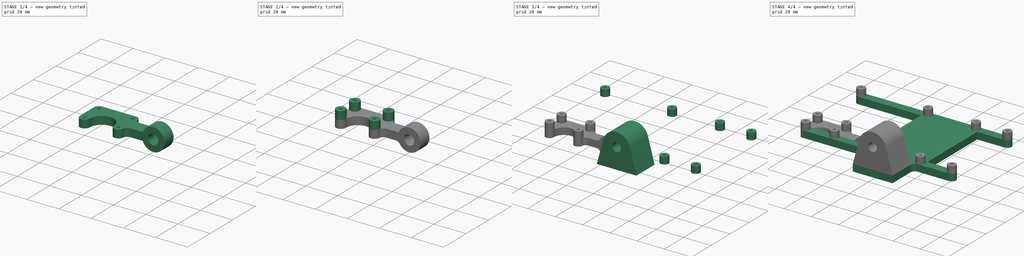
[diagram: build sequence overview — one tinted view per stage of 4, left to right]
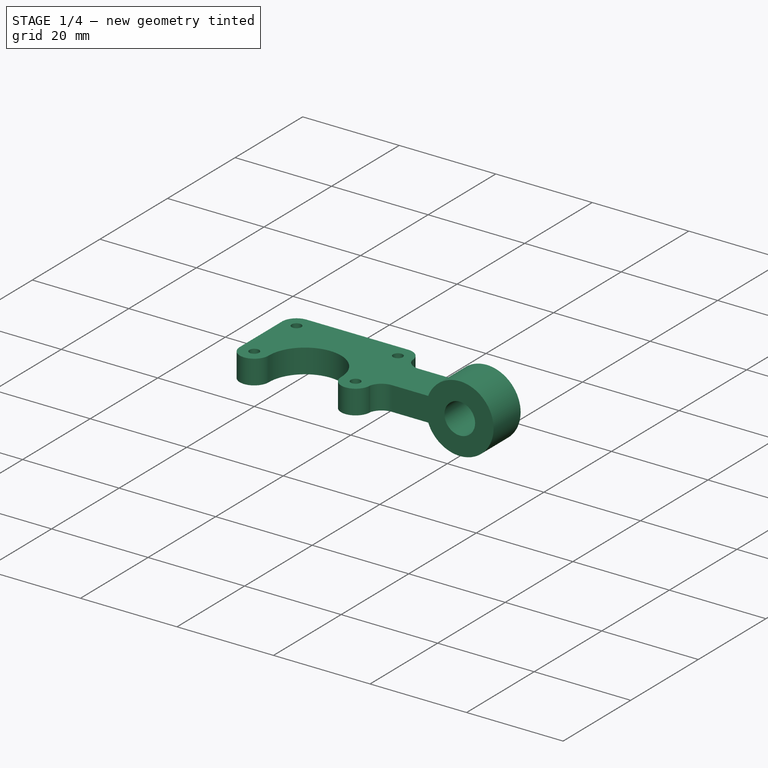
[diagram: stage 1 of 4 — iso view after this stage's code; geometry added in this stage tinted green]
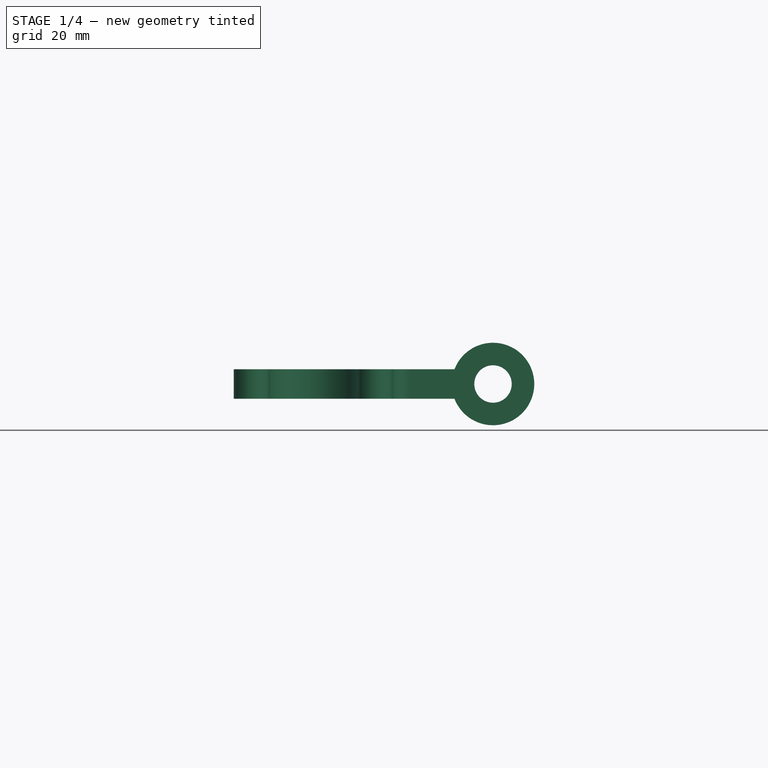
[diagram: stage 1 of 4 — front view after this stage's code; geometry added in this stage tinted green]
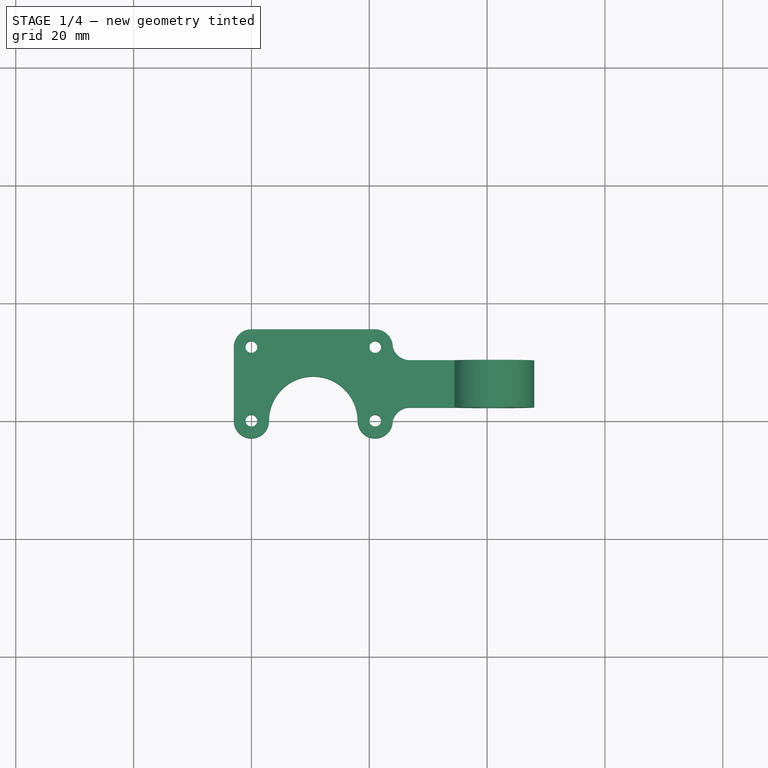
[diagram: stage 1 of 4 — top view after this stage's code; geometry added in this stage tinted green]
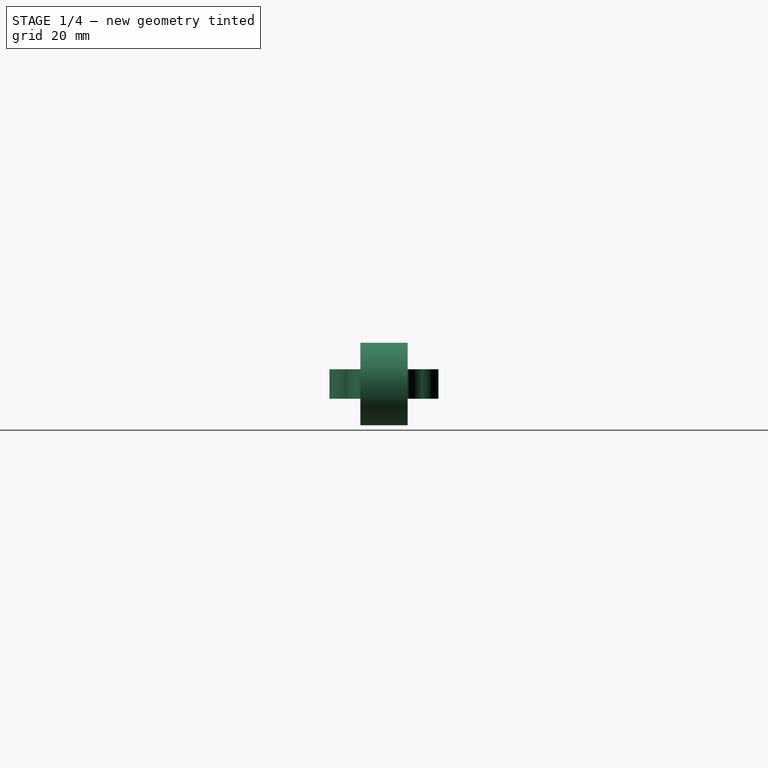
[diagram: stage 1 of 4 — right view after this stage's code; geometry added in this stage tinted green]
FCSTD DOCUMENT  (FreeCAD 0.18R16146 (Git))
Label: v2
License: All rights reserved
LicenseURL: http://en.wikipedia.org/wiki/All_rights_reserved
objects: Sketcher::SketchObject×6, Part::Extrusion×6, PartDesign::Plane×2, PartDesign::Body×2, Part::MultiFuse×2, Part::Fillet×2, PartDesign::Point×1
note: 21 computed .brp shape members not serialized (recipe doc carries the construction recipe); baked Part::Feature solids carry a one-line shape summary decoded from their .brp

FEATURE [Part::Extrusion] Extrude004
  Base = -> Sketch004
  Dir = (0,0,-1)
  DirMode = 0
  FaceMakerClass = Part::FaceMakerBullseye
  LengthFwd = 5
  LengthRev = 0
  Solid = true
  Symmetric = false
FEATURE [PartDesign::Plane] DatumPlane001
  Length = 57.3875
  MapMode = 1
  Placement = pos=(41,6.25,0) rot=(1,0,0;1.5708rad)
  ResizeMode = 0
  Width = 26.3875
FEATURE [Sketcher::SketchObject] Sketch005
  ExternalGeometry = -> [Sketch004]
  MapMode = 5
  Placement = pos=(41,6.25,0) rot=(1,0,0;1.5708rad)
  Support = -> [DatumPlane001]
  sketch-geometry (3):
    g0: LineSegment [constr] StartX=0 StartY=0 StartZ=0 EndX=0 EndY=-5 EndZ=0
    g1: Circle CenterX=0 CenterY=-2.5 CenterZ=0 NormalX=0 NormalY=0 NormalZ=1 AngleXU=0 Radius=3.175
    g2: Circle CenterX=0 CenterY=-2.5 CenterZ=0 NormalX=0 NormalY=0 NormalZ=1 AngleXU=0 Radius=7
  constraints (8):
    c: Coincident(g0,g-1)
    c: PointOnObject(g0,g-2)
    c: DistanceY(g0,g0) = 5
    c: PointOnObject(g1,g0)
    c: DistanceY(g1,g-1) = 2.5
    c: Radius(g1) = 3.175
    c: Coincident(g2,g1)
    c: Radius(g2) = 7
FEATURE [PartDesign::Body] Body001  label="camera_profile"
  Group = -> [Sketch003,Sketch004,DatumPlane001,Sketch005]
  Origin = -> Origin001
FEATURE [Part::Extrusion] Extrude007
  Base = -> Sketch005
  Dir = (0,1,0)
  DirMode = 0
  FaceMakerClass = Part::FaceMakerBullseye
  LengthFwd = 8
  LengthRev = 0
  Solid = true
  Symmetric = true
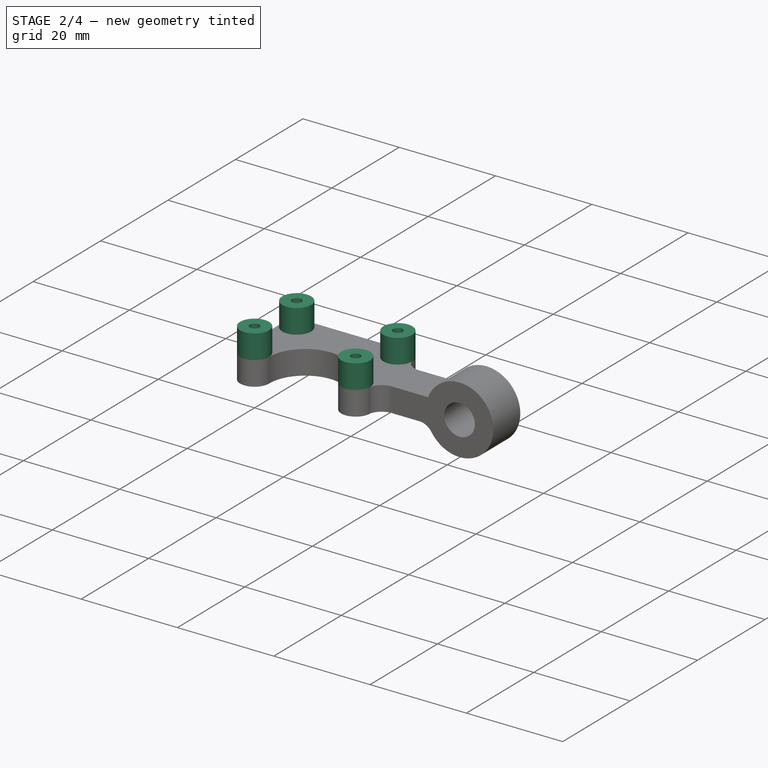
[diagram: stage 2 of 4 — iso view after this stage's code; geometry added in this stage tinted green]
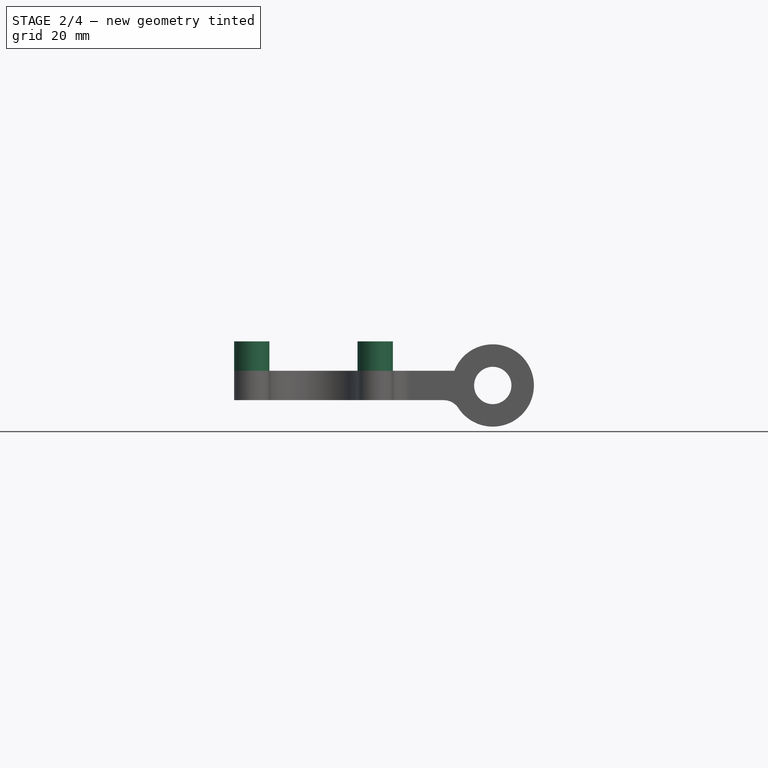
[diagram: stage 2 of 4 — front view after this stage's code; geometry added in this stage tinted green]
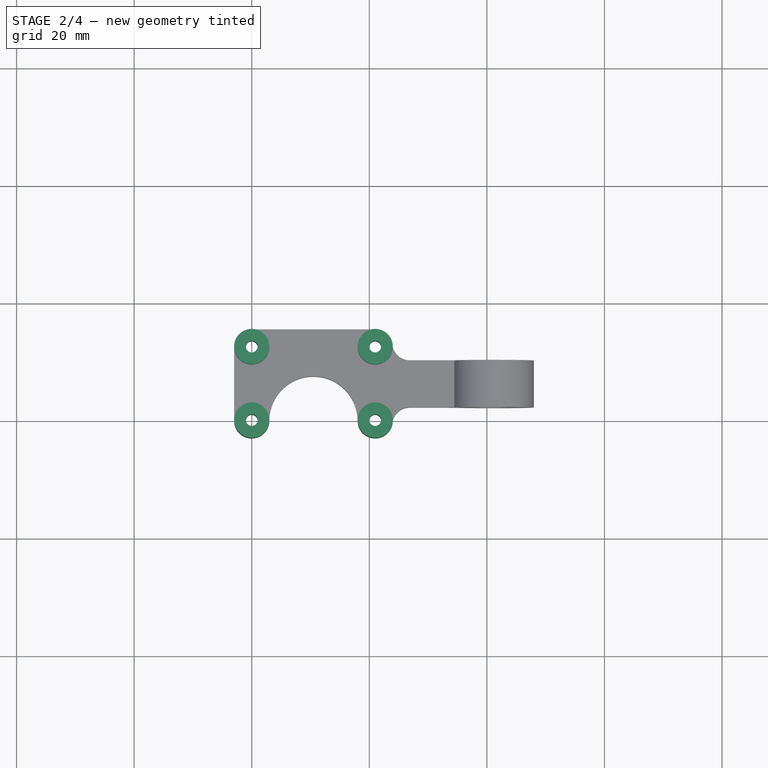
[diagram: stage 2 of 4 — top view after this stage's code; geometry added in this stage tinted green]
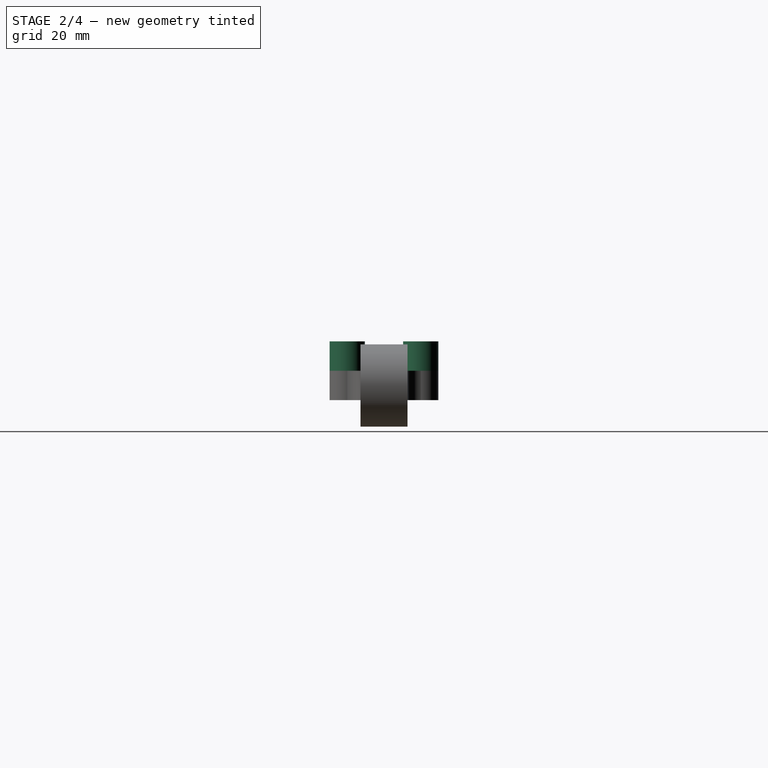
[diagram: stage 2 of 4 — right view after this stage's code; geometry added in this stage tinted green]
FEATURE [Sketcher::SketchObject] Sketch003  label="camera-stilts"
  MapMode = 5
  Support = -> [XY_Plane002]
  sketch-geometry (11):
    g0: LineSegment [constr] StartX=0 StartY=0 StartZ=0 EndX=0 EndY=12.5 EndZ=0
    g1: LineSegment [constr] StartX=0 StartY=12.5 StartZ=0 EndX=21 EndY=12.5 EndZ=0
    g2: Circle CenterX=0 CenterY=12.5 CenterZ=0 NormalX=0 NormalY=0 NormalZ=1 AngleXU=0 Radius=1
    g3: Circle CenterX=0 CenterY=12.5 CenterZ=0 NormalX=0 NormalY=0 NormalZ=1 AngleXU=0 Radius=3
    g4: Circle CenterX=21 CenterY=12.5 CenterZ=0 NormalX=0 NormalY=0 NormalZ=1 AngleXU=0 Radius=1
    g5: Circle CenterX=21 CenterY=12.5 CenterZ=0 NormalX=0 NormalY=0 NormalZ=1 AngleXU=0 Radius=3
    g6: Circle CenterX=21 CenterY=0 CenterZ=0 NormalX=0 NormalY=0 NormalZ=1 AngleXU=0 Radius=1
    g7: Circle CenterX=21 CenterY=0 CenterZ=0 NormalX=0 NormalY=0 NormalZ=1 AngleXU=0 Radius=3
    g8: Circle CenterX=0 CenterY=0 CenterZ=0 NormalX=0 NormalY=0 NormalZ=1 AngleXU=0 Radius=1
    g9: Circle CenterX=0 CenterY=0 CenterZ=0 NormalX=0 NormalY=0 NormalZ=1 AngleXU=0 Radius=3
    g10: LineSegment [constr] StartX=0 StartY=0 StartZ=0 EndX=10.5 EndY=0 EndZ=0
  constraints (26):
    c: Coincident(g0,g-1)
    c: Vertical(g0)
    c: Coincident(g1,g0)
    c: Horizontal(g1)
    c: DistanceY(g0,g0) = 12.5
    c: DistanceX(g1,g1) = 21
    c: Coincident(g2,g0)
    c: Coincident(g3,g2)
    c: Radius(g2) = 1
    c: Radius(g3) = 3
    c: PointOnObject(g6,g-1)
    c: Vertical(g1,g6)
    c: Coincident(g4,g1)
    c: Coincident(g5,g4)
    c: Coincident(g7,g6)
    c: Coincident(g8,g-1)
    c: Coincident(g9,g8)
    c: Equal(g2,g8)
    c: Equal(g2,g4)
    c: Equal(g2,g6)
    c: Equal(g3,g5)
    c: Equal(g9,g3)
    c: Equal(g3,g7)
    c: Coincident(g10,g8)
    c: PointOnObject(g10,g-1)
    c: DistanceX(g10,g10) = 10.5
FEATURE [Sketcher::SketchObject] Sketch004  label="camera-base"
  MapMode = 5
  Support = -> [XY_Plane002]
  sketch-geometry (22):
    g0: LineSegment [constr] StartX=0 StartY=0 StartZ=0 EndX=0 EndY=12.5 EndZ=0
    g1: LineSegment [constr] StartX=0 StartY=12.5 StartZ=0 EndX=21 EndY=12.5 EndZ=0
    g2: Circle CenterX=0 CenterY=12.5 CenterZ=0 NormalX=0 NormalY=0 NormalZ=1 AngleXU=0 Radius=1
    g3: Circle CenterX=21 CenterY=12.5 CenterZ=0 NormalX=0 NormalY=0 NormalZ=1 AngleXU=0 Radius=1
    g4: Circle CenterX=21 CenterY=0 CenterZ=0 NormalX=0 NormalY=0 NormalZ=1 AngleXU=0 Radius=1
    g5: Circle CenterX=0 CenterY=0 CenterZ=0 NormalX=0 NormalY=0 NormalZ=1 AngleXU=0 Radius=1
    g6: LineSegment [constr] StartX=0 StartY=0 StartZ=0 EndX=10.5 EndY=0 EndZ=0
    g7: LineSegment StartX=-3 StartY=12.5 StartZ=0 EndX=-3 EndY=0 EndZ=0
    g8: ArcOfCircle CenterX=10.5 CenterY=0 CenterZ=0 NormalX=0 NormalY=0 NormalZ=1 AngleXU=0 Radius=7.5 StartAngle=0 EndAngle=3.14159
    g9: ArcOfCircle CenterX=0 CenterY=12.5 CenterZ=0 NormalX=0 NormalY=0 NormalZ=1 AngleXU=0 Radius=3 StartAngle=1.5708 EndAngle=3.14159
    g10: ArcOfCircle CenterX=0 CenterY=0 CenterZ=0 NormalX=0 NormalY=0 NormalZ=1 AngleXU=0 Radius=3 StartAngle=3.14159 EndAngle=6.28319
    g11: LineSegment [constr] StartX=21 StartY=12.5 StartZ=0 EndX=35 EndY=12.5 EndZ=0
    g12: LineSegment [constr] StartX=0 StartY=6.25 StartZ=0 EndX=35 EndY=6.25 EndZ=0
    g13: ArcOfCircle CenterX=21 CenterY=12.5 CenterZ=0 NormalX=0 NormalY=0 NormalZ=1 AngleXU=0 Radius=3 StartAngle=6e-16 EndAngle=1.5708
    g14: ArcOfCircle CenterX=21 CenterY=0 CenterZ=0 NormalX=0 NormalY=0 NormalZ=1 AngleXU=0 Radius=3 StartAngle=3.14159 EndAngle=6.28319
    g15: LineSegment StartX=35 StartY=10.25 StartZ=0 EndX=26.9047 EndY=10.25 EndZ=0
    g16: LineSegment StartX=35 StartY=2.25 StartZ=0 EndX=26.9047 EndY=2.25 EndZ=0
    g17: LineSegment StartX=35 StartY=10.25 StartZ=0 EndX=35 EndY=6.25 EndZ=0
    g18: LineSegment StartX=35 StartY=2.25 StartZ=0 EndX=35 EndY=6.25 EndZ=0
    g19: LineSegment StartX=2e-16 StartY=15.5 StartZ=0 EndX=21 EndY=15.5 EndZ=0
    g20: ArcOfCircle CenterX=26.9047 CenterY=13.25 CenterZ=0 NormalX=0 NormalY=0 NormalZ=1 AngleXU=0 Radius=3 StartAngle=3.39427 EndAngle=4.71239
    g21: ArcOfCircle CenterX=26.9047 CenterY=-0.75 CenterZ=0 NormalX=0 NormalY=0 NormalZ=1 AngleXU=0 Radius=3 StartAngle=1.5708 EndAngle=2.88891
  constraints (57):
    c: Coincident(g0,g-1)
    c: Vertical(g0)
    c: Coincident(g1,g0)
    c: Horizontal(g1)
    c: DistanceY(g0,g0) = 12.5
    c: DistanceX(g1,g1) = 21
    c: Coincident(g2,g0)
    c: Radius(g2) = 1
    c: PointOnObject(g4,g-1)
    c: Vertical(g1,g4)
    c: Coincident(g3,g1)
    c: Coincident(g5,g-1)
    c: Equal(g2,g5)
    c: Equal(g2,g3)
    c: Equal(g2,g4)
    c: Coincident(g6,g5)
    c: PointOnObject(g6,g-1)
    c: Vertical(g7)
    c: Coincident(g8,g6)
    c: Coincident(g9,g2)
    c: Coincident(g10,g5)
    c: Tangent(g9,g7) = -1.5708
    c: Tangent(g10,g8) = 1.5708
    c: Tangent(g10,g7) = -1.5708
    c: Coincident(g11,g3)
    c: Horizontal(g11)
    c: DistanceX(g11,g11) = 14
    c: PointOnObject(g12,g0)
    c: Horizontal(g12)
    c: DistanceY(g5,g12) = 6.25
    c: DistanceY(g12,g15) = 4
    c: DistanceY(g16,g12) = 4
    c: Vertical(g11,g12)
    c: Coincident(g13,g3)
    c: Coincident(g14,g4)
    c: PointOnObject(g14,g-1)
    c: Horizontal(g15)
    c: Horizontal(g16)
    c: Coincident(g17,g15)
    c: Coincident(g17,g12)
    c: Vertical(g17)
    c: Coincident(g18,g16)
    c: Vertical(g18)
    c: Horizontal(g19)
    c: Tangent(g15,g20) = 1.5708
    c: Tangent(g19,g9) = 1.5708
    c: Tangent(g19,g13) = 1.5708
    c: Radius(g9) = 3
    c: Tangent(g14,g8) = 1.5708
    c: Coincident(g20,g13)
    c: PointOnObject(g13,g11)
    c: Radius(g20) = 3
    c: Coincident(g12,g18)
    c: Radius(g14) = 3
    c: Coincident(g21,g14)
    c: Radius(g21) = 3
    c: Tangent(g21,g16) = -1.5708
FEATURE [Part::Extrusion] Extrude003
  Base = -> Sketch003
  Dir = (0,0,1)
  DirMode = 0
  FaceMakerClass = Part::FaceMakerBullseye
  LengthFwd = 5
  LengthRev = 0
  Solid = true
  Symmetric = false
FEATURE [Part::MultiFuse] Fusion001  label="camera-mount-solid"
  Shapes = -> [Extrude003,Extrude004,Extrude007]
FEATURE [Part::Fillet] Fillet
  Base = -> Fusion001
  Edges = 1 edges r=3: [Edge18]
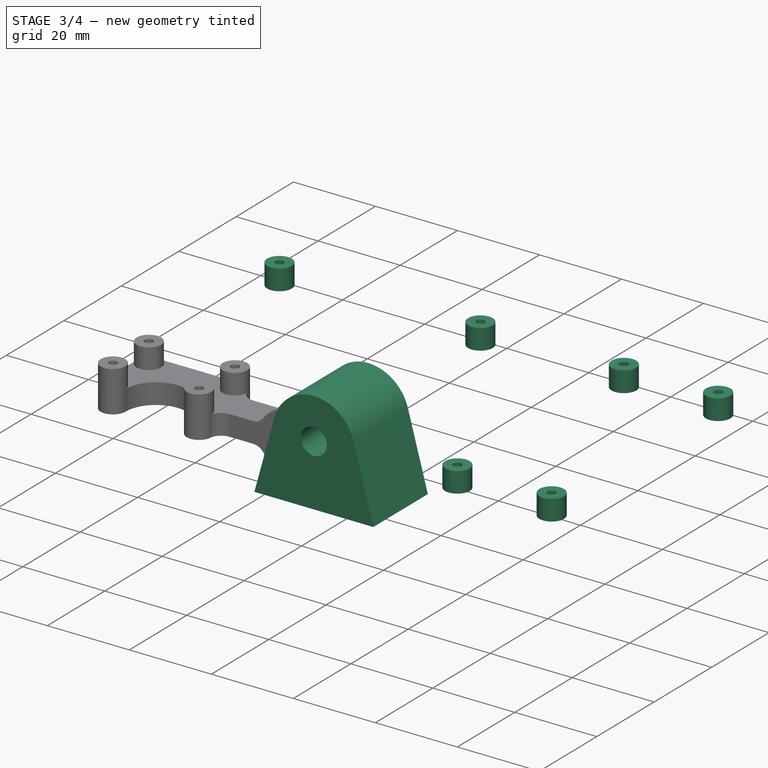
[diagram: stage 3 of 4 — iso view after this stage's code; geometry added in this stage tinted green]
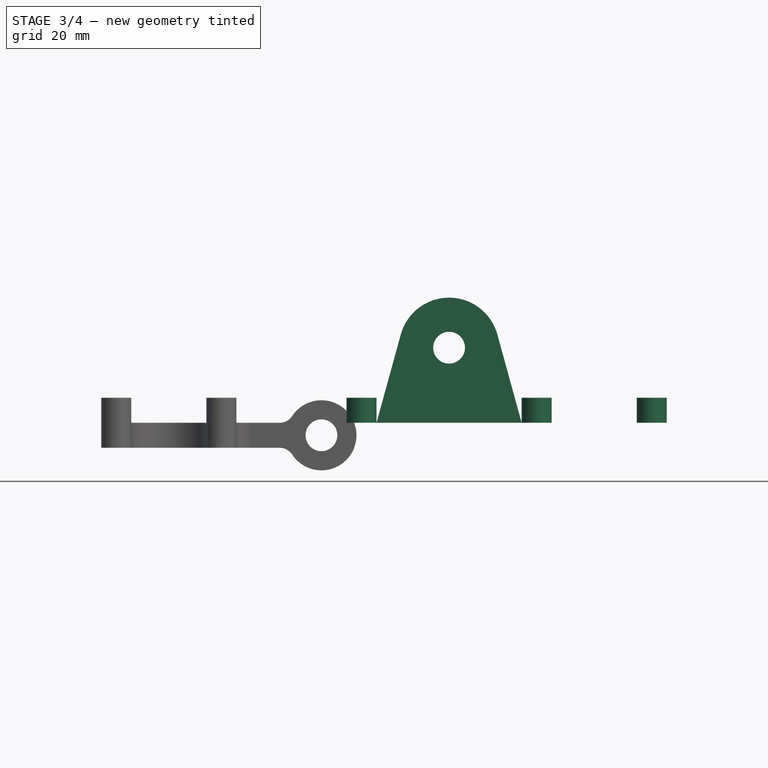
[diagram: stage 3 of 4 — front view after this stage's code; geometry added in this stage tinted green]
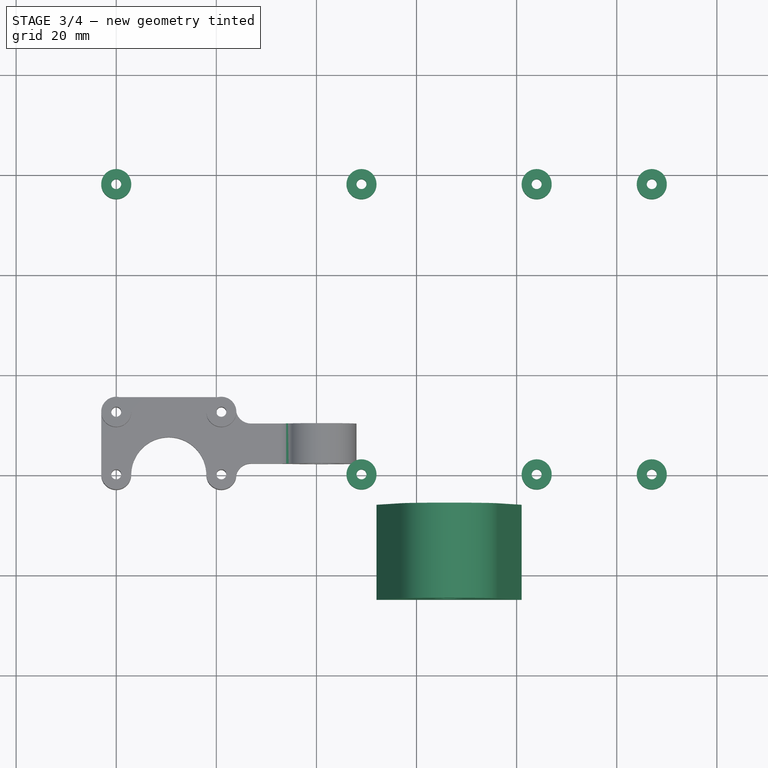
[diagram: stage 3 of 4 — top view after this stage's code; geometry added in this stage tinted green]
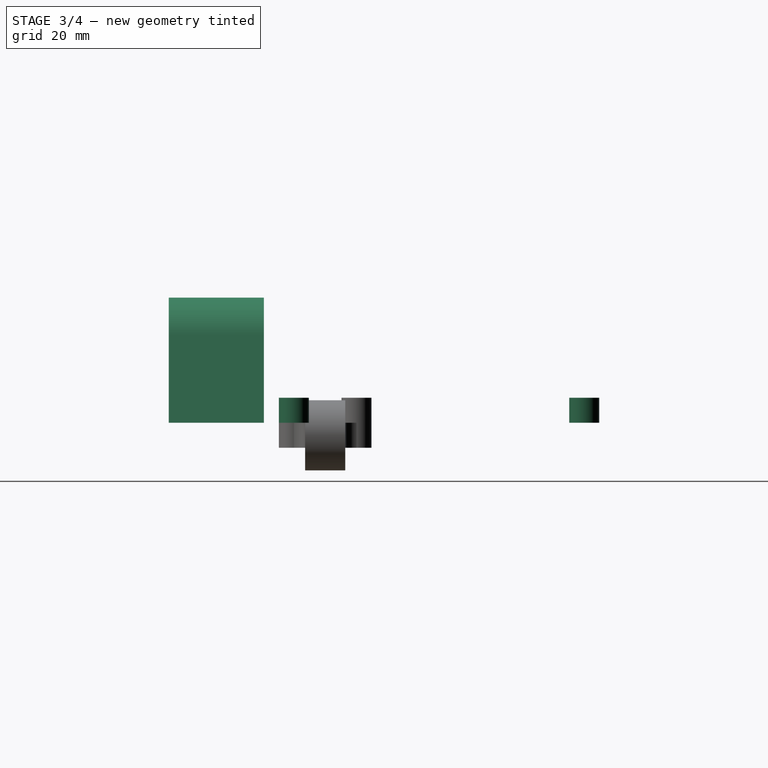
[diagram: stage 3 of 4 — right view after this stage's code; geometry added in this stage tinted green]
FEATURE [Part::Extrusion] Extrude  label="stilts-extruded"
  Base = -> Sketch
  Dir = (0,0,1)
  DirMode = 0
  FaceMakerClass = Part::FaceMakerBullseye
  LengthFwd = 5
  LengthRev = 0
  Solid = true
  Symmetric = false
FEATURE [Part::Extrusion] Extrude002  label="camera-rig-mount001"
  Base = -> Sketch002
  Dir = (0,1,0)
  DirMode = 0
  FaceMakerClass = Part::FaceMakerBullseye
  LengthFwd = 19
  LengthRev = 0
  Solid = true
  Symmetric = false
FEATURE [Part::Fillet] Fillet001  label="CAMERA-MOUNT"
  Base = -> Fillet
  Edges = 1 edges r=3: [Edge60]
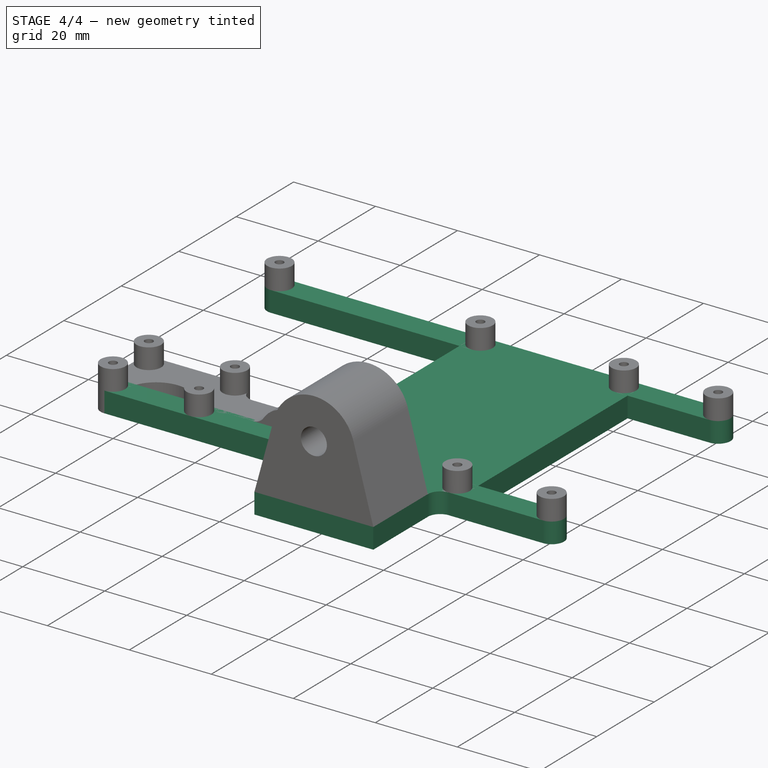
[diagram: stage 4 of 4 — iso view after this stage's code; geometry added in this stage tinted green]
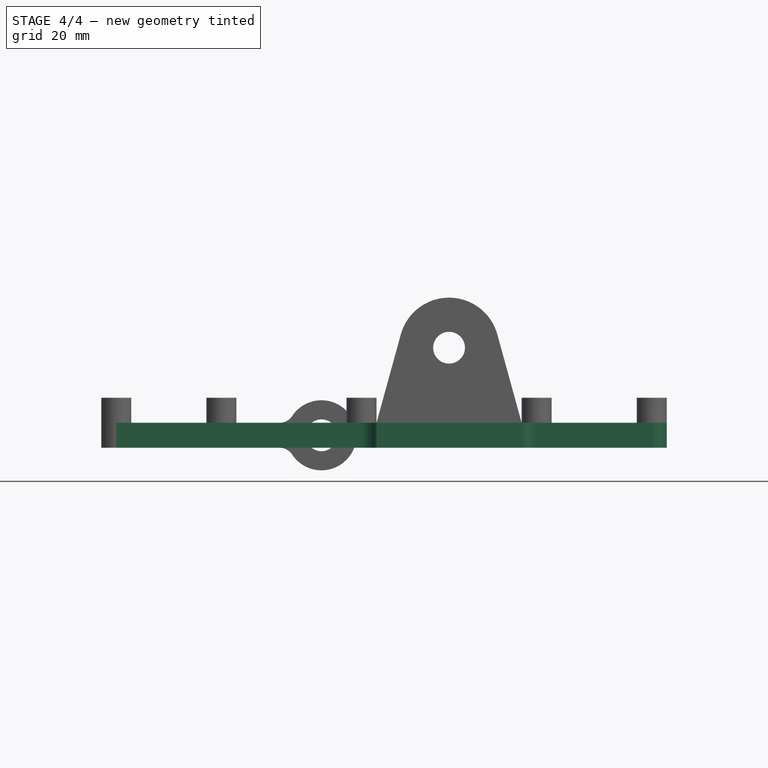
[diagram: stage 4 of 4 — front view after this stage's code; geometry added in this stage tinted green]
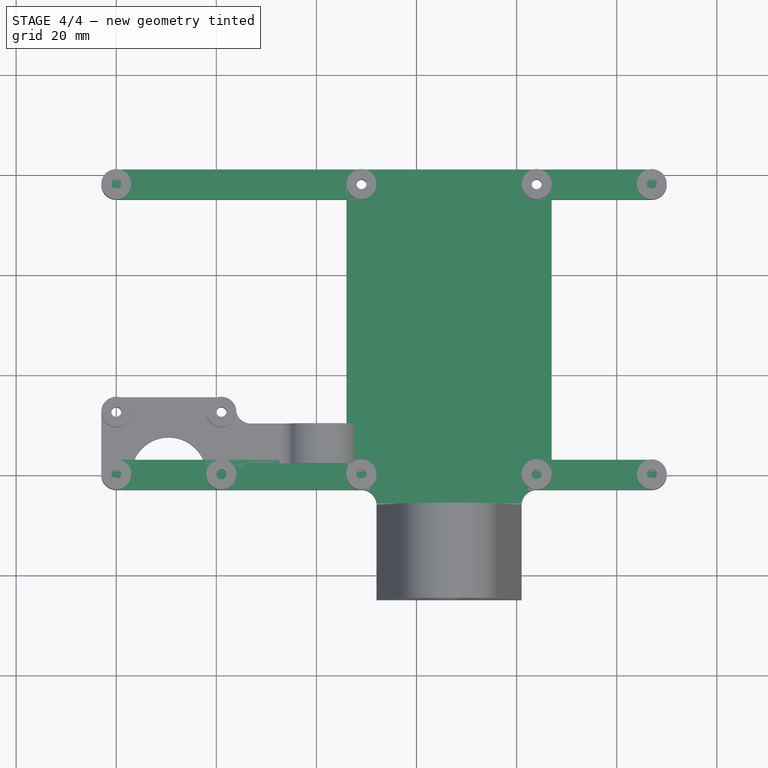
[diagram: stage 4 of 4 — top view after this stage's code; geometry added in this stage tinted green]
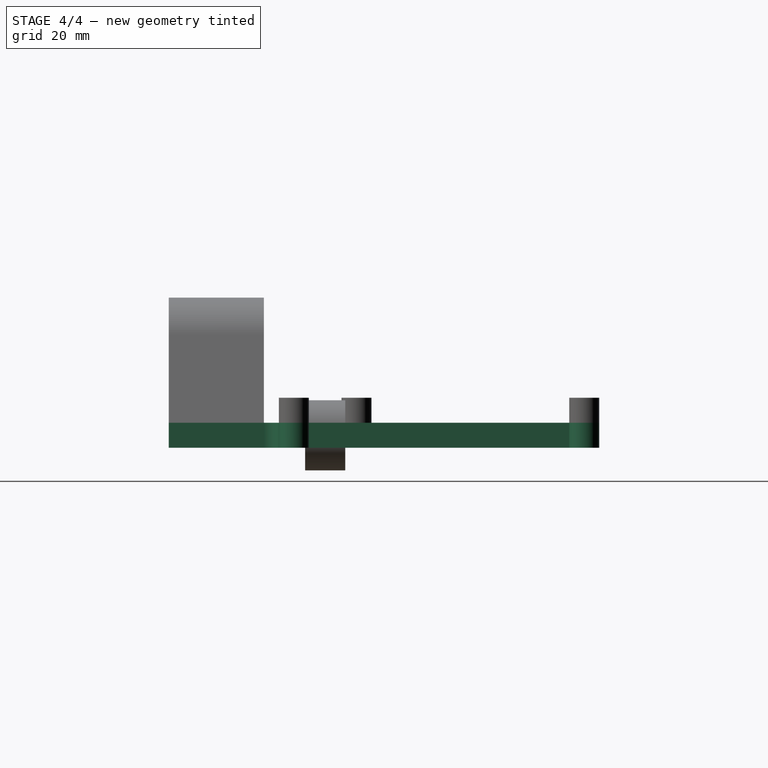
[diagram: stage 4 of 4 — right view after this stage's code; geometry added in this stage tinted green]
FEATURE [Sketcher::SketchObject] Sketch  label="stilts"
  MapMode = 5
  Support = -> [XY_Plane]
  sketch-geometry (23):
    g0: LineSegment [constr] StartX=49 StartY=0 StartZ=0 EndX=49 EndY=58 EndZ=0
    g1: LineSegment [constr] StartX=49 StartY=0 StartZ=0 EndX=84 EndY=0 EndZ=0
    g2: LineSegment [constr] StartX=84 StartY=0 StartZ=0 EndX=84 EndY=58 EndZ=0
    g3: LineSegment [constr] StartX=84 StartY=0 StartZ=0 EndX=107 EndY=0 EndZ=0
    g4: LineSegment [constr] StartX=107 StartY=0 StartZ=0 EndX=107 EndY=58 EndZ=0
    g5: LineSegment [constr] StartX=0 StartY=0 StartZ=0 EndX=0 EndY=58 EndZ=0
    g6: Circle CenterX=0 CenterY=58 CenterZ=0 NormalX=0 NormalY=0 NormalZ=1 AngleXU=0 Radius=1
    g7: Circle CenterX=0 CenterY=58 CenterZ=0 NormalX=0 NormalY=0 NormalZ=1 AngleXU=0 Radius=3
    g8: LineSegment [constr] StartX=0 StartY=0 StartZ=0 EndX=49 EndY=0 EndZ=0
    g9: Circle CenterX=49 CenterY=58 CenterZ=0 NormalX=0 NormalY=0 NormalZ=1 AngleXU=0 Radius=1
    g10: Circle CenterX=49 CenterY=58 CenterZ=0 NormalX=0 NormalY=0 NormalZ=1 AngleXU=0 Radius=3
    g11: Circle CenterX=84 CenterY=58 CenterZ=0 NormalX=0 NormalY=0 NormalZ=1 AngleXU=0 Radius=3
    g12: Circle CenterX=84 CenterY=58 CenterZ=0 NormalX=0 NormalY=0 NormalZ=1 AngleXU=0 Radius=1
    g13: Circle CenterX=107 CenterY=58 CenterZ=0 NormalX=0 NormalY=0 NormalZ=1 AngleXU=0 Radius=3
    g14: Circle CenterX=107 CenterY=58 CenterZ=0 NormalX=0 NormalY=0 NormalZ=1 AngleXU=0 Radius=1
    g15: Circle CenterX=0 CenterY=0 CenterZ=0 NormalX=0 NormalY=0 NormalZ=1 AngleXU=0 Radius=1
    g16: Circle CenterX=0 CenterY=0 CenterZ=0 NormalX=0 NormalY=0 NormalZ=1 AngleXU=0 Radius=3
    g17: Circle CenterX=49 CenterY=0 CenterZ=0 NormalX=0 NormalY=0 NormalZ=1 AngleXU=0 Radius=1
    g18: Circle CenterX=49 CenterY=0 CenterZ=0 NormalX=0 NormalY=0 NormalZ=1 AngleXU=0 Radius=3
    g19: Circle CenterX=84 CenterY=0 CenterZ=0 NormalX=0 NormalY=0 NormalZ=1 AngleXU=0 Radius=3
    g20: Circle CenterX=84 CenterY=0 CenterZ=0 NormalX=0 NormalY=0 NormalZ=1 AngleXU=0 Radius=1
    g21: Circle CenterX=107 CenterY=0 CenterZ=0 NormalX=0 NormalY=0 NormalZ=1 AngleXU=0 Radius=3
    g22: Circle CenterX=107 CenterY=0 CenterZ=0 NormalX=0 NormalY=0 NormalZ=1 AngleXU=0 Radius=1
  constraints (53):
    c: Vertical(g0)
    c: DistanceX(g-1,g0) = 49
    c: Horizontal(g1)
    c: DistanceX(g1,g1) = 35
    c: Vertical(g2)
    c: PointOnObject(g3,g-1)
    c: DistanceX(g3,g3) = 23
    c: Vertical(g4)
    c: Coincident(g5,g-1)
    c: PointOnObject(g5,g-2)
    c: DistanceY(g5,g5) = 58
    c: Coincident(g6,g5)
    c: Coincident(g7,g6)
    c: Radius(g6) = 1
    c: Radius(g7) = 3
    c: Coincident(g8,g-1)
    c: Coincident(g8,g0)
    c: Horizontal(g8)
    c: Coincident(g0,g1)
    c: Equal(g5,g0)
    c: Equal(g2,g5)
    c: Coincident(g1,g2)
    c: Coincident(g1,g3)
    c: Equal(g4,g5)
    c: Coincident(g3,g4)
    c: Coincident(g9,g0)
    c: Coincident(g10,g9)
    c: Coincident(g11,g2)
    c: Coincident(g13,g4)
    c: Coincident(g14,g13)
    c: Equal(g9,g6)
    c: Equal(g7,g10)
    c: Equal(g12,g6)
    c: Equal(g6,g14)
    c: Equal(g11,g7)
    c: Equal(g13,g7)
    c: Coincident(g2,g12)
    c: Coincident(g15,g-1)
    c: Coincident(g16,g15)
    c: Coincident(g17,g0)
    c: Coincident(g18,g17)
    c: Coincident(g19,g1)
    c: Coincident(g20,g19)
    c: Coincident(g21,g3)
    c: Coincident(g22,g21)
    c: Equal(g16,g7)
    c: Equal(g18,g7)
    c: Equal(g19,g7)
    c: Equal(g21,g7)
    c: Equal(g15,g6)
    c: Equal(g17,g6)
    c: Equal(g20,g6)
    c: Equal(g22,g6)
FEATURE [Sketcher::SketchObject] Sketch001  label="base"
  MapMode = 5
  Support = -> [XY_Plane]
  sketch-geometry (34):
    g0: LineSegment [constr] StartX=49 StartY=0 StartZ=0 EndX=49 EndY=58 EndZ=0
    g1: LineSegment [constr] StartX=49 StartY=0 StartZ=0 EndX=84 EndY=0 EndZ=0
    g2: LineSegment [constr] StartX=84 StartY=0 StartZ=0 EndX=84 EndY=58 EndZ=0
    g3: LineSegment [constr] StartX=84 StartY=0 StartZ=0 EndX=107 EndY=0 EndZ=0
    g4: LineSegment [constr] StartX=107 StartY=0 StartZ=0 EndX=107 EndY=58 EndZ=0
    g5: LineSegment [constr] StartX=0 StartY=0 StartZ=0 EndX=0 EndY=58 EndZ=0
    g6: LineSegment [constr] StartX=0 StartY=0 StartZ=0 EndX=49 EndY=0 EndZ=0
    g7: Circle [constr] CenterX=49 CenterY=58 CenterZ=0 NormalX=0 NormalY=0 NormalZ=1 AngleXU=0 Radius=3
    g8: Circle [constr] CenterX=84 CenterY=58 CenterZ=0 NormalX=0 NormalY=0 NormalZ=1 AngleXU=0 Radius=3
    g9: Circle [constr] CenterX=49 CenterY=0 CenterZ=0 NormalX=0 NormalY=0 NormalZ=1 AngleXU=0 Radius=3
    g10: Circle [constr] CenterX=84 CenterY=0 CenterZ=0 NormalX=0 NormalY=0 NormalZ=1 AngleXU=0 Radius=3
    g11: LineSegment StartX=-9.55538e-08 StartY=61 StartZ=0 EndX=107 EndY=61 EndZ=0
    g12: LineSegment StartX=-6e-16 StartY=-3 StartZ=0 EndX=49 EndY=-3 EndZ=0
    g13: LineSegment StartX=87 StartY=55 StartZ=0 EndX=87 EndY=3 EndZ=0
    g14: LineSegment StartX=46 StartY=55 StartZ=0 EndX=46 EndY=3 EndZ=0
    g15: LineSegment StartX=-6e-16 StartY=55 StartZ=0 EndX=46 EndY=55 EndZ=0
    g16: LineSegment StartX=2e-16 StartY=3 StartZ=0 EndX=46 EndY=3 EndZ=0
    g17: LineSegment [constr] StartX=46 StartY=55 StartZ=0 EndX=49 EndY=55 EndZ=0
    g18: LineSegment [constr] StartX=84 StartY=55 StartZ=0 EndX=87 EndY=55 EndZ=0
    g19: LineSegment StartX=107 StartY=3 StartZ=0 EndX=87 EndY=3 EndZ=0
    g20: LineSegment StartX=107 StartY=55 StartZ=0 EndX=87 EndY=55 EndZ=0
    g21: ArcOfCircle CenterX=0 CenterY=58 CenterZ=0 NormalX=0 NormalY=0 NormalZ=1 AngleXU=0 Radius=3 StartAngle=1.5708 EndAngle=4.71239
    g22: ArcOfCircle CenterX=0 CenterY=0 CenterZ=0 NormalX=0 NormalY=0 NormalZ=1 AngleXU=0 Radius=3 StartAngle=1.5708 EndAngle=4.71239
    g23: ArcOfCircle CenterX=107 CenterY=0 CenterZ=0 NormalX=0 NormalY=0 NormalZ=1 AngleXU=0 Radius=3 StartAngle=4.71239 EndAngle=7.85398
    g24: ArcOfCircle CenterX=107 CenterY=58 CenterZ=0 NormalX=0 NormalY=0 NormalZ=1 AngleXU=0 Radius=3 StartAngle=4.71239 EndAngle=7.85398
    g25: LineSegment StartX=52 StartY=-6 StartZ=0 EndX=52 EndY=-25 EndZ=0
    g26: LineSegment StartX=81 StartY=-6 StartZ=0 EndX=81 EndY=-25 EndZ=0
    g27: LineSegment [constr] StartX=49 StartY=0 StartZ=0 EndX=49 EndY=-25 EndZ=0
    g28: ArcOfCircle CenterX=49 CenterY=-6 CenterZ=0 NormalX=0 NormalY=0 NormalZ=1 AngleXU=0 Radius=3 StartAngle=0 EndAngle=1.5708
    g29: LineSegment StartX=107 StartY=-3 StartZ=0 EndX=84 EndY=-3 EndZ=0
    g30: ArcOfCircle CenterX=84 CenterY=-6 CenterZ=0 NormalX=0 NormalY=0 NormalZ=1 AngleXU=0 Radius=3 StartAngle=1.5708 EndAngle=3.14159
    g31: LineSegment StartX=52 StartY=-25 StartZ=0 EndX=81 EndY=-25 EndZ=0
    g32: Circle CenterX=49 CenterY=58 CenterZ=0 NormalX=0 NormalY=0 NormalZ=1 AngleXU=0 Radius=1
    g33: Circle CenterX=84 CenterY=58 CenterZ=0 NormalX=0 NormalY=0 NormalZ=1 AngleXU=0 Radius=1
  constraints (89):
    c: Vertical(g0)
    c: DistanceX(g-1,g0) = 49
    c: Horizontal(g1)
    c: DistanceX(g1,g1) = 35
    c: Vertical(g2)
    c: PointOnObject(g3,g-1)
    c: DistanceX(g3,g3) = 23
    c: Vertical(g4)
    c: Coincident(g5,g-1)
    c: PointOnObject(g5,g-2)
    c: DistanceY(g5,g5) = 58
    c: Coincident(g6,g-1)
    c: Horizontal(g6)
    c: Equal(g5,g0)
    c: Equal(g2,g5)
    c: Coincident(g1,g2)
    c: Coincident(g1,g3)
    c: Equal(g4,g5)
    c: Coincident(g3,g4)
    c: Coincident(g8,g2)
    c: Coincident(g10,g1)
    c: Horizontal(g11)
    c: Horizontal(g12)
    c: Vertical(g13)
    c: Coincident(g0,g1)
    c: Coincident(g0,g6)
    c: Coincident(g0,g9)
    c: Coincident(g0,g7)
    c: Horizontal(g15)
    c: Vertical(g14)
    c: Coincident(g14,g15)
    c: Horizontal(g16)
    c: PointOnObject(g16,g5)
    c: Coincident(g14,g16)
    c: Coincident(g17,g14)
    c: PointOnObject(g17,g0)
    c: Perpendicular(g0,g17)
    c: DistanceX(g17,g17) = 3
    c: PointOnObject(g18,g2)
    c: Perpendicular(g2,g18)
    c: DistanceX(g18,g18) = 3
    c: Horizontal(g19)
    c: Coincident(g13,g19)
    c: Coincident(g13,g20)
    c: Coincident(g18,g13)
    c: Coincident(g21,g5)
    c: Coincident(g21,g11)
    c: Coincident(g21,g15)
    c: Coincident(g22,g-1)
    c: Coincident(g22,g16)
    c: Coincident(g23,g3)
    c: Coincident(g24,g4)
    c: Radius(g22) = 3
    c: Equal(g22,g21)
    c: Equal(g22,g23)
    c: Equal(g24,g22)
    c: PointOnObject(g15,g5)
    c: Tangent(g24,g11) = 1.5708
    c: Tangent(g24,g20) = 1.5708
    c: Perpendicular(g20,g13)
    c: Tangent(g19,g23) = -1.5708
    c: Tangent(g12,g22) = -1.5708
    c: Equal(g21,g7)
    c: Equal(g9,g22)
    c: Equal(g10,g22)
    c: Equal(g8,g22)
    c: Vertical(g25)
    c: Vertical(g26)
    c: Coincident(g27,g0)
    c: Vertical(g27)
    c: DistanceY(g27,g27) = 25
    c: Tangent(g12,g28) = 1.5708
    c: Tangent(g25,g28) = 1.5708
    c: Equal(g9,g28)
    c: PointOnObject(g12,g27)
    c: Horizontal(g25,g27)
    c: Coincident(g29,g23)
    c: Tangent(g29,g30) = -1.5708
    c: Tangent(g26,g30) = -1.5708
    c: Equal(g30,g28)
    c: Tangent(g29,g10) = 1.5708
    c: Vertical(g23,g19)
    c: Horizontal(g26,g25)
    c: Coincident(g31,g25)
    c: Coincident(g31,g26)
    c: Coincident(g32,g0)
    c: Radius(g32) = 1
    c: Coincident(g33,g2)
    c: Equal(g32,g33)
FEATURE [PartDesign::Point] DatumPoint
  AttacherType = Attacher::AttachEnginePoint
  MapMode = 39
  Placement = pos=(52,-25,0) rot=(0,0,1;0rad)
  Support = -> [Sketch001]
FEATURE [PartDesign::Plane] DatumPlane
  Length = 69.0427
  MapMode = 3
  Placement = pos=(52,-25,0) rot=(1,0,0;1.5708rad)
  ResizeMode = 0
  Support = -> [DatumPoint]
  Width = 27.0427
FEATURE [Sketcher::SketchObject] Sketch002  label="camera-rig-mount"
  ExternalGeometry = -> [Sketch001]
  MapMode = 5
  Placement = pos=(52,-25,0) rot=(1,0,0;1.5708rad)
  Support = -> [DatumPlane]
  sketch-geometry (8):
    g0: LineSegment StartX=9e-16 StartY=0 StartZ=0 EndX=29 EndY=0 EndZ=0
    g1: Circle CenterX=14.5 CenterY=15 CenterZ=0 NormalX=0 NormalY=0 NormalZ=1 AngleXU=0 Radius=3.175
    g2: LineSegment [constr] StartX=9e-16 StartY=0 StartZ=0 EndX=0 EndY=25 EndZ=0
    g3: LineSegment [constr] StartX=0 StartY=25 StartZ=0 EndX=29 EndY=25 EndZ=0
    g4: LineSegment [constr] StartX=0 StartY=15 StartZ=0 EndX=29 EndY=15 EndZ=0
    g5: LineSegment StartX=4.85847 StartY=17.6535 StartZ=0 EndX=9e-16 EndY=0 EndZ=0
    g6: LineSegment StartX=24.1415 StartY=17.6535 StartZ=0 EndX=29 EndY=0 EndZ=0
    g7: ArcOfCircle CenterX=14.5 CenterY=15 CenterZ=0 NormalX=0 NormalY=0 NormalZ=1 AngleXU=0 Radius=10 StartAngle=0.268565 EndAngle=2.87303
  constraints (21):
    c: Coincident(g0,g-1)
    c: Coincident(g0,g-3)
    c: Coincident(g2,g0)
    c: PointOnObject(g2,g-2)
    c: DistanceY(g2,g2) = 25
    c: Coincident(g3,g2)
    c: Horizontal(g3)
    c: Radius(g1) = 3.175
    c: PointOnObject(g4,g2)
    c: Horizontal(g4)
    c: DistanceY(g0,g4) = 15
    c: Vertical(g4,g0)
    c: DistanceX(g4,g1) = 14.5
    c: PointOnObject(g1,g4)
    c: Vertical(g3,g4)
    c: Coincident(g5,g0)
    c: Coincident(g6,g0)
    c: Coincident(g7,g1)
    c: Radius(g7) = 10
    c: Tangent(g7,g5) = -1.5708
    c: Tangent(g7,g6) = 1.5708
FEATURE [PartDesign::Body] Body  label="BASE"
  Group = -> [Sketch,Sketch001,DatumPoint,DatumPlane,Sketch002]
  Origin = -> Origin
FEATURE [Part::Extrusion] Extrude001  label="base-extrusion"
  Base = -> Sketch001
  Dir = (0,0,-5)
  DirMode = 0
  FaceMakerClass = Part::FaceMakerBullseye
  LengthFwd = 5
  LengthRev = 0
  Solid = true
  Symmetric = false
FEATURE [Part::MultiFuse] Fusion  label="MAIN-BASE"
  Shapes = -> [Extrude001,Extrude,Extrude002]
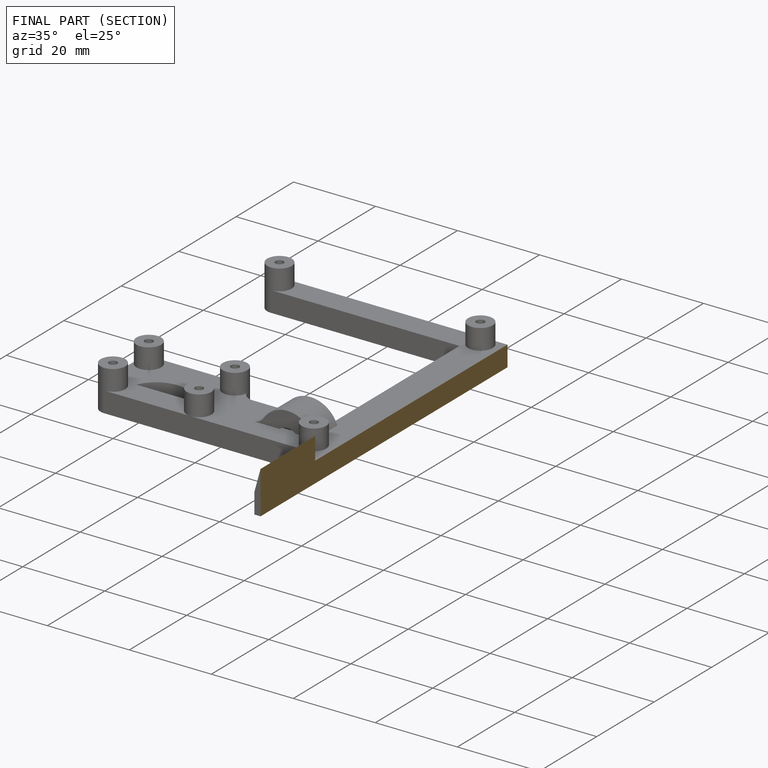
[diagram: finished part — half-section view (interior)]
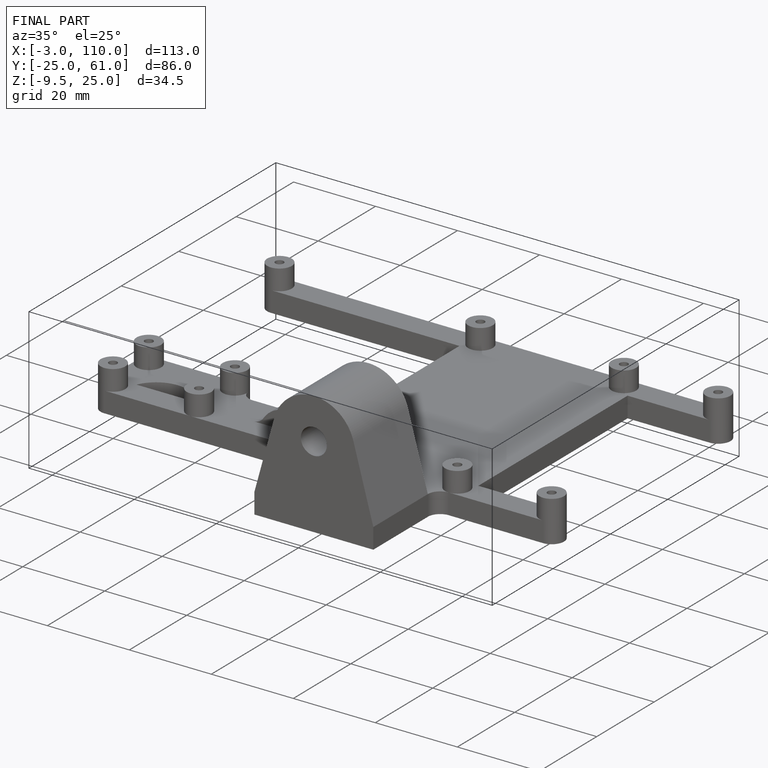
[diagram: finished part — iso view with bounding-box wireframe]
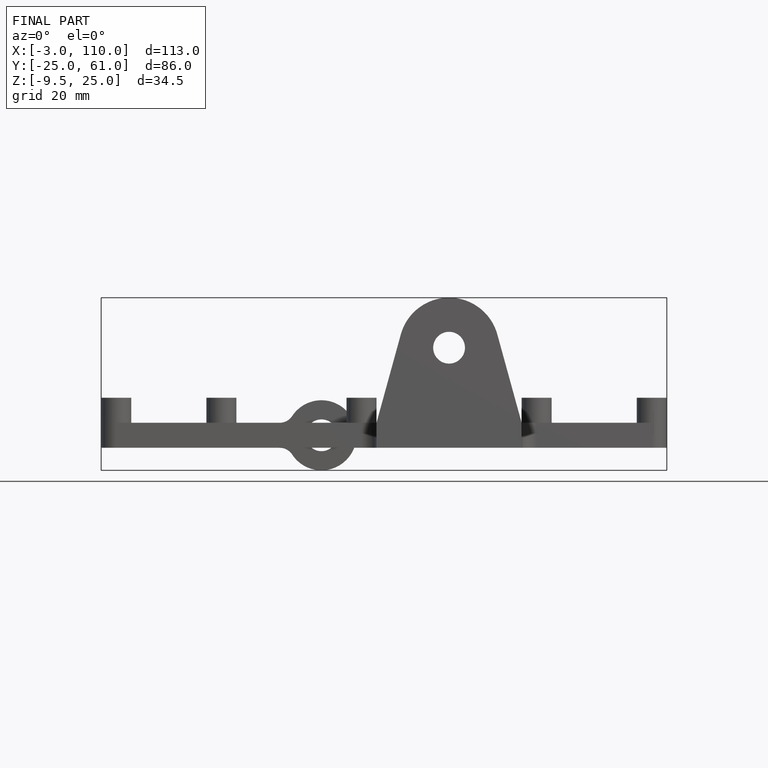
[diagram: finished part — front view with bounding-box wireframe]
